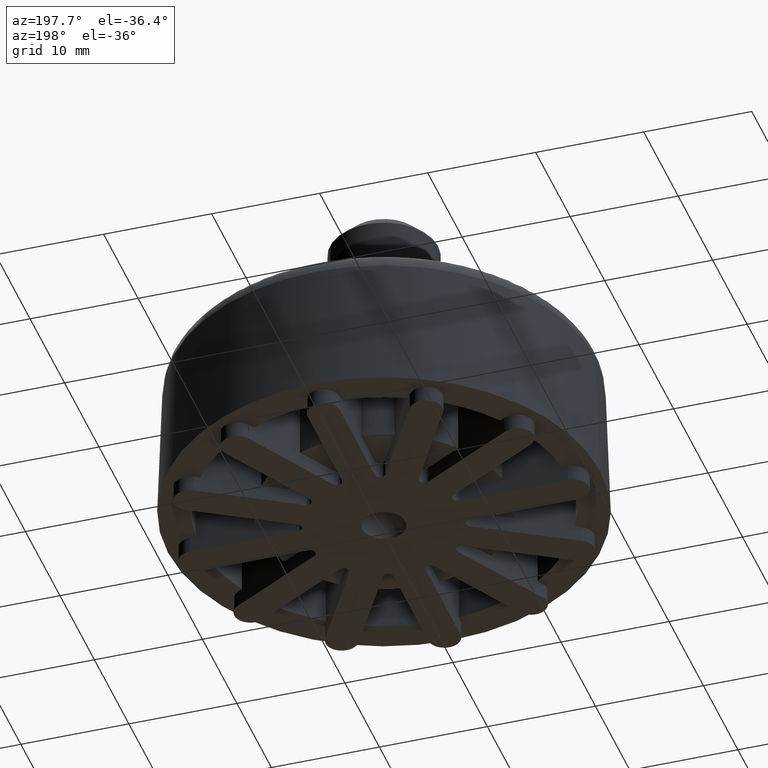
[diagram: clean part render]
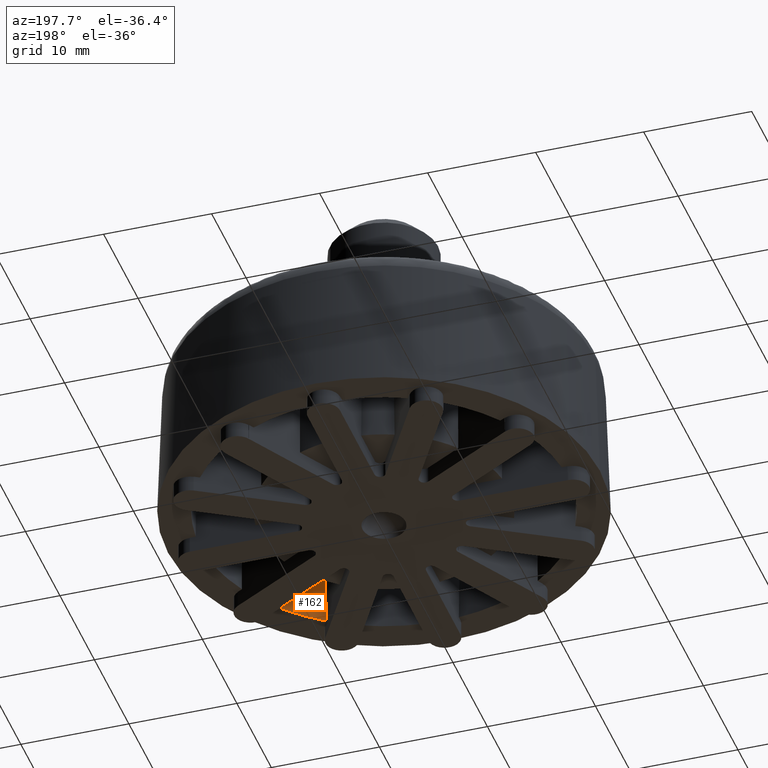
[diagram: same view with one face highlighted and labeled with its STEP entity id]
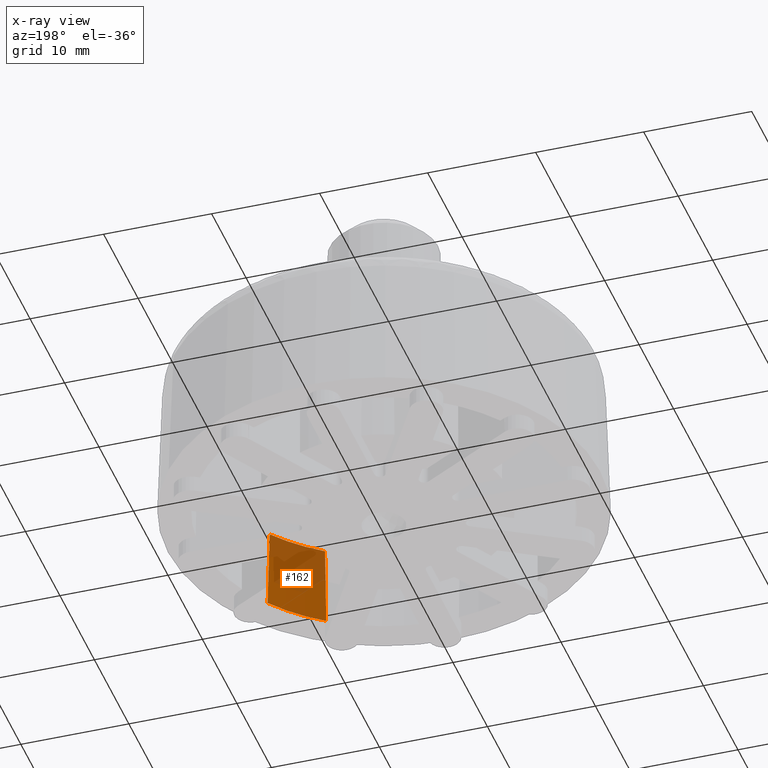
[diagram: x-ray of the same camera — body ghosted, the highlighted face saturated]
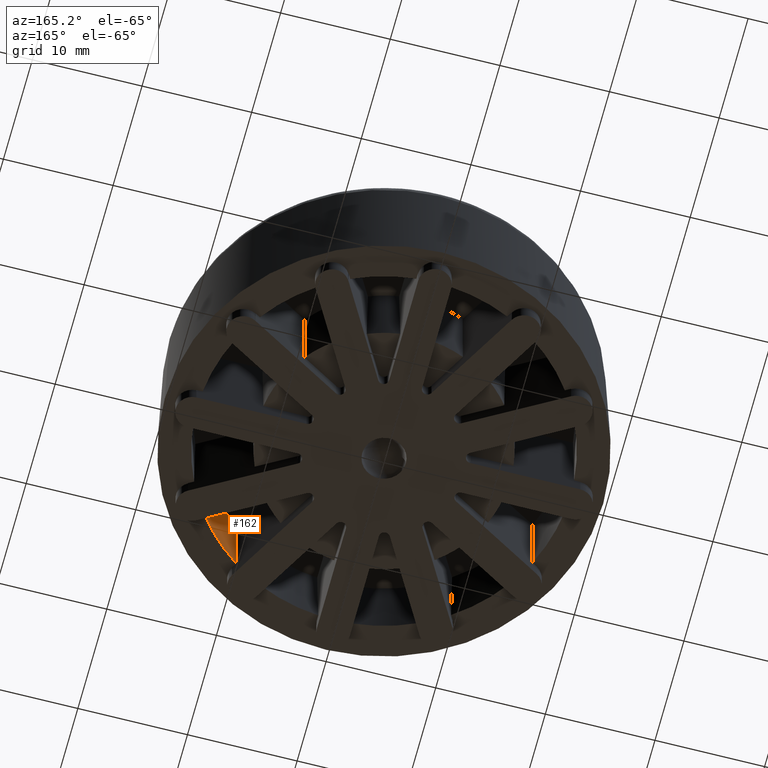
[diagram: same view with one face highlighted and labeled with its STEP entity id]
A machine part, auxiliary view. The second image highlights one B-rep face of the part: STEP entity #162.
The next image is the same camera in x-ray: the body ghosted, the highlighted face saturated — about 58% of this face is hidden behind the body in this view.
A second angle (auxiliary view) of the same face is appended — the face is thin or edge-on in the first view.
In plain terms, the highlighted face is a freeform B-spline surface patch.
Its self-contained STEP definition (entity closure, byte-faithful):
#162=ADVANCED_FACE('',(#1426),#1425,.F.);
#1425=( BOUNDED_SURFACE() B_SPLINE_SURFACE( 2,1,((#2459,#2460),(#2461,#2462),(#2463,#2464)), .UNSPECIFIED.,.F.,.F.,.F.) B_SPLINE_SURFACE_WITH_KNOTS((3,3),(2,2),(0.00000000000E+00,1.00000000000E+00),(0.00000000000E+00,1.00000000000E+00), .UNSPECIFIED. ) GEOMETRIC_REPRESENTATION_ITEM() RATIONAL_B_SPLINE_SURFACE(((1.00000000000E+00,1.00000000000E+00),(9.85253320677E-01,9.85253320677E-01),(1.00000000000E+00,1.00000000000E+00))) REPRESENTATION_ITEM('') SURFACE() );
#1426=FACE_OUTER_BOUND('',#2465,.T.);
#2459=CARTESIAN_POINT('',(1.38002558379E+01,-9.71630115461E+00,9.00000000000E+00));
#2460=CARTESIAN_POINT('',(1.39072990264E+01,-9.79166670348E+00,1.50000000000E+00));
#2461=CARTESIAN_POINT('',(1.21128943072E+01,-1.21128943072E+01,9.00000000000E+00));
#2462=CARTESIAN_POINT('',(1.22068492920E+01,-1.22068492920E+01,1.50000000000E+00));
#2463=CARTESIAN_POINT('',(9.71630115461E+00,-1.38002558379E+01,9.00000000000E+00));
#2464=CARTESIAN_POINT('',(9.79166670348E+00,-1.39072990264E+01,1.50000000000E+00));
#2465=EDGE_LOOP('',(#3392,#3393,#3394,#3395));
#3392=ORIENTED_EDGE('',*,*,#3967,.F.);
#3393=ORIENTED_EDGE('',*,*,#3942,.F.);
#3394=ORIENTED_EDGE('',*,*,#3877,.F.);
#3395=ORIENTED_EDGE('',*,*,#3917,.T.);
#3877=EDGE_CURVE('',#5935,#5942,#5943,.T.);
#3917=EDGE_CURVE('',#5935,#6197,#6204,.T.);
#3942=EDGE_CURVE('',#5942,#6359,#6366,.T.);
#3967=EDGE_CURVE('',#6359,#6197,#6527,.T.);
#5935=VERTEX_POINT('',#7925);
#5942=VERTEX_POINT('',#7929);
#5943=(BOUNDED_CURVE() B_SPLINE_CURVE(3,(#7930,#7931,#7932,#7933),.UNSPECIFIED.,.F.,.F.) B_SPLINE_CURVE_WITH_KNOTS((4,4),(0.00000000000E+00,7.50252161501E-03),.UNSPECIFIED.) CURVE() GEOMETRIC_REPRESENTATION_ITEM() RATIONAL_B_SPLINE_CURVE((1.00000000000E+00,1.00000000000E+00,1.00000000000E+00,1.00000000000E+00)) REPRESENTATION_ITEM('') );
#6197=VERTEX_POINT('',#8091);
#6204=CIRCLE('',#8098,1.70085185434E+01);
#6359=VERTEX_POINT('',#8194);
#6366=CIRCLE('',#8201,1.68776055565E+01);
#6527=(BOUNDED_CURVE() B_SPLINE_CURVE(3,(#8309,#8310,#8311,#8312,#8313,#8314,#8315),.UNSPECIFIED.,.F.,.F.) B_SPLINE_CURVE_WITH_KNOTS((4,3,4),(1.13273750488E-02,1.50803987554E-02,1.88298966094E-02),.UNSPECIFIED.) CURVE() GEOMETRIC_REPRESENTATION_ITEM() RATIONAL_B_SPLINE_CURVE((1.00000000000E+00,1.00000000000E+00,1.00000000000E+00,1.00000000000E+00,1.00000000000E+00,1.00000000000E+00,1.00000000000E+00)) REPRESENTATION_ITEM('') );
#7925=CARTESIAN_POINT('',(1.39072990264E+01,-9.79166670348E+00,1.50000000000E+00));
#7929=CARTESIAN_POINT('',(1.37172661300E+01,-9.83311645609E+00,9.00000000000E+00));
#7930=CARTESIAN_POINT('',(1.39072990264E+01,-9.79166670348E+00,1.50000000000E+00));
#7931=CARTESIAN_POINT('',(1.38441309399E+01,-9.80558510239E+00,4.00000389384E+00));
#7932=CARTESIAN_POINT('',(1.37807881493E+01,-9.81940255834E+00,6.50000394395E+00));
#7933=CARTESIAN_POINT('',(1.37172661300E+01,-9.83311645609E+00,9.00000000000E+00));
#8091=CARTESIAN_POINT('',(9.79166670348E+00,-1.39072990264E+01,1.50000000000E+00));
#8095=CARTESIAN_POINT('',(0.00000000000E+00,0.00000000000E+00,1.50000000000E+00));
#8096=DIRECTION('',(-0.00000000000E+00,0.00000000000E+00,-1.00000000000E+00));
#8097=DIRECTION('',(1.00000000000E+00,-0.00000000000E+00,-0.00000000000E+00));
#8098=AXIS2_PLACEMENT_3D('',#8095,#8096,#8097);
#8194=CARTESIAN_POINT('',(9.83311645609E+00,-1.37172661300E+01,9.00000000000E+00));
#8198=CARTESIAN_POINT('',(0.00000000000E+00,0.00000000000E+00,9.00000000000E+00));
#8199=DIRECTION('',(-0.00000000000E+00,0.00000000000E+00,-1.00000000000E+00));
#8200=DIRECTION('',(1.00000000000E+00,-0.00000000000E+00,-0.00000000000E+00));
#8201=AXIS2_PLACEMENT_3D('',#8198,#8199,#8200);
#8309=CARTESIAN_POINT('',(9.83311645609E+00,-1.37172661300E+01,9.00000000000E+00));
#8310=CARTESIAN_POINT('',(9.82625628475E+00,-1.37490420659E+01,7.74941452744E+00));
#8311=CARTESIAN_POINT('',(9.81937019778E+00,-1.37807731495E+01,6.49882805635E+00));
#8312=CARTESIAN_POINT('',(9.81245852604E+00,-1.38124599532E+01,5.24824060578E+00));
#8313=CARTESIAN_POINT('',(9.80555334760E+00,-1.38441169881E+01,3.99882804407E+00));
#8314=CARTESIAN_POINT('',(9.79862263242E+00,-1.38757298262E+01,2.74941450263E+00));
#8315=CARTESIAN_POINT('',(9.79166670348E+00,-1.39072990264E+01,1.50000000000E+00));